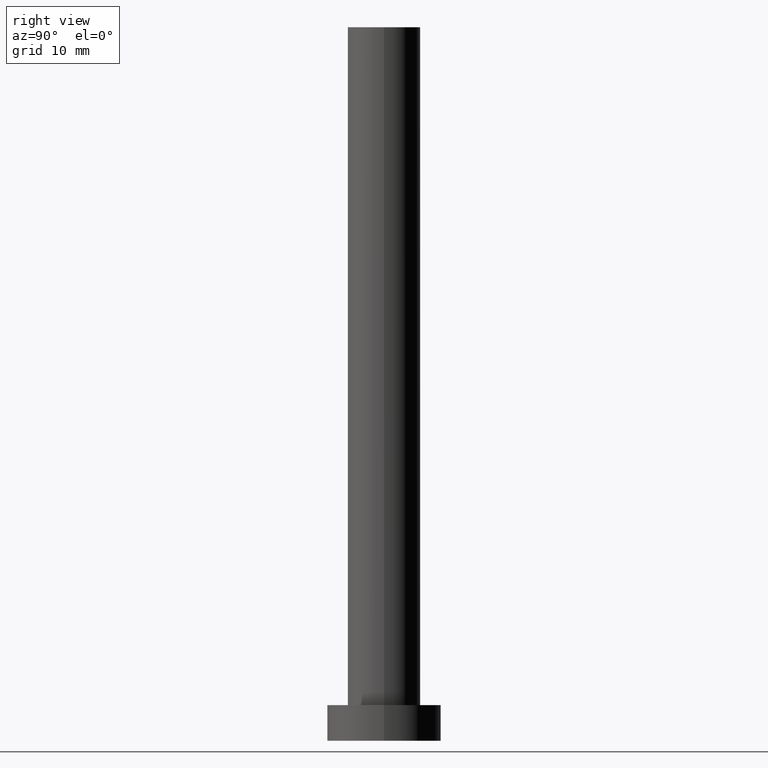
[diagram: clean part render]
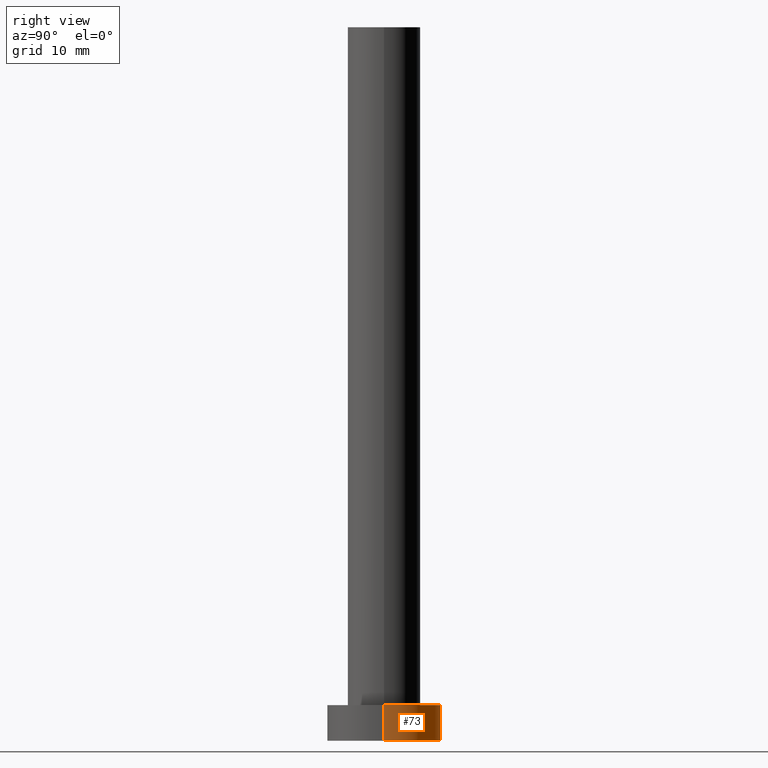
[diagram: same view with one face highlighted and labeled with its STEP entity id]
A machine part, right view. The second image highlights one B-rep face of the part: STEP entity #73.
In plain terms, the highlighted cylindrical surface (partial cylindrical patch) has radius 8 mm, axis along (-0, -0, -1).
Its self-contained STEP definition (entity closure, byte-faithful):
#4 = EDGE_CURVE ( 'NONE', #168, #247, #155, .T. ) ;
#16 = ORIENTED_EDGE ( 'NONE', *, *, #39, .F. ) ;
#35 = AXIS2_PLACEMENT_3D ( 'NONE', #59, #227, #37 ) ;
#37 = DIRECTION ( 'NONE',  ( -1.000000000000000000, 0.000000000000000000, 0.000000000000000000 ) ) ;
#38 = VERTEX_POINT ( 'NONE', #72 ) ;
#39 = EDGE_CURVE ( 'NONE', #167, #38, #153, .T. ) ;
#49 = CARTESIAN_POINT ( 'NONE',  ( 8.000000000000000000, 9.797174393178825657E-16, 0.000000000000000000 ) ) ;
#52 = CARTESIAN_POINT ( 'NONE',  ( -8.000000000000000000, 0.000000000000000000, 5.000000000000000000 ) ) ;
#59 = CARTESIAN_POINT ( 'NONE',  ( 0.000000000000000000, 0.000000000000000000, 5.000000000000000000 ) ) ;
#72 = CARTESIAN_POINT ( 'NONE',  ( -8.000000000000000000, 0.000000000000000000, 0.000000000000000000 ) ) ;
#73 = ADVANCED_FACE ( 'NONE', ( #100 ), #230, .T. ) ;
#74 = ORIENTED_EDGE ( 'NONE', *, *, #150, .F. ) ;
#76 = AXIS2_PLACEMENT_3D ( 'NONE', #214, #197, #200 ) ;
#98 = VECTOR ( 'NONE', #114, 1000.000000000000000 ) ;
#100 = FACE_OUTER_BOUND ( 'NONE', #203, .T. ) ;
#108 = VECTOR ( 'NONE', #177, 1000.000000000000000 ) ;
#114 = DIRECTION ( 'NONE',  ( -0.000000000000000000, -0.000000000000000000, -1.000000000000000000 ) ) ;
#121 = ORIENTED_EDGE ( 'NONE', *, *, #4, .T. ) ;
#150 = EDGE_CURVE ( 'NONE', #168, #167, #159, .T. ) ;
#152 = CARTESIAN_POINT ( 'NONE',  ( 0.000000000000000000, 0.000000000000000000, 0.000000000000000000 ) ) ;
#153 = LINE ( 'NONE', #52, #98 ) ;
#155 = LINE ( 'NONE', #243, #108 ) ;
#159 = CIRCLE ( 'NONE', #76, 8.000000000000000000 ) ;
#164 = CIRCLE ( 'NONE', #211, 8.000000000000000000 ) ;
#167 = VERTEX_POINT ( 'NONE', #201 ) ;
#168 = VERTEX_POINT ( 'NONE', #184 ) ;
#177 = DIRECTION ( 'NONE',  ( -0.000000000000000000, -0.000000000000000000, -1.000000000000000000 ) ) ;
#184 = CARTESIAN_POINT ( 'NONE',  ( 8.000000000000000000, 9.797174393178825657E-16, 5.000000000000000000 ) ) ;
#197 = DIRECTION ( 'NONE',  ( 0.000000000000000000, 0.000000000000000000, 1.000000000000000000 ) ) ;
#200 = DIRECTION ( 'NONE',  ( 1.000000000000000000, 0.000000000000000000, 0.000000000000000000 ) ) ;
#201 = CARTESIAN_POINT ( 'NONE',  ( -8.000000000000000000, 0.000000000000000000, 5.000000000000000000 ) ) ;
#203 = EDGE_LOOP ( 'NONE', ( #74, #121, #236, #16 ) ) ;
#204 = DIRECTION ( 'NONE',  ( 1.000000000000000000, 0.000000000000000000, 0.000000000000000000 ) ) ;
#209 = EDGE_CURVE ( 'NONE', #247, #38, #164, .T. ) ;
#211 = AXIS2_PLACEMENT_3D ( 'NONE', #152, #223, #204 ) ;
#214 = CARTESIAN_POINT ( 'NONE',  ( 0.000000000000000000, 0.000000000000000000, 5.000000000000000000 ) ) ;
#223 = DIRECTION ( 'NONE',  ( 0.000000000000000000, 0.000000000000000000, 1.000000000000000000 ) ) ;
#227 = DIRECTION ( 'NONE',  ( -0.000000000000000000, -0.000000000000000000, -1.000000000000000000 ) ) ;
#230 = CYLINDRICAL_SURFACE ( 'NONE', #35, 8.000000000000000000 ) ;
#236 = ORIENTED_EDGE ( 'NONE', *, *, #209, .T. ) ;
#243 = CARTESIAN_POINT ( 'NONE',  ( 8.000000000000000000, 9.797174393178825657E-16, 5.000000000000000000 ) ) ;
#247 = VERTEX_POINT ( 'NONE', #49 ) ;